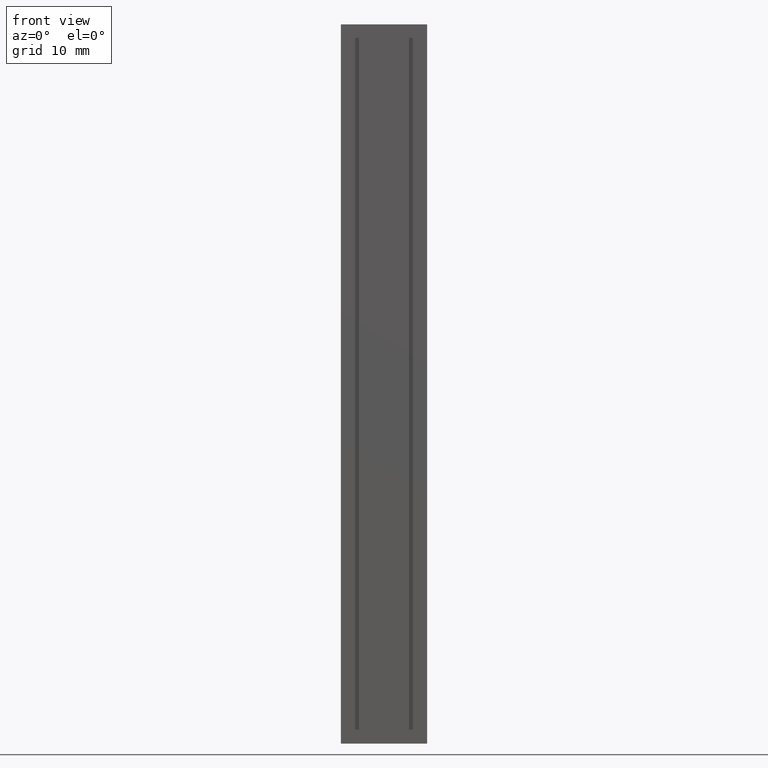
[diagram: clean part render]
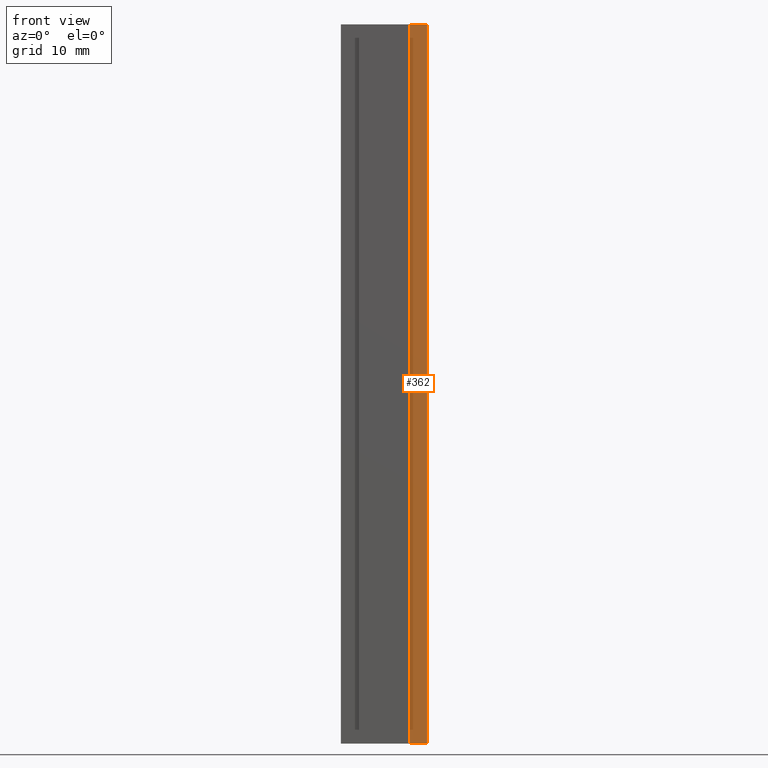
[diagram: same view with one face highlighted and labeled with its STEP entity id]
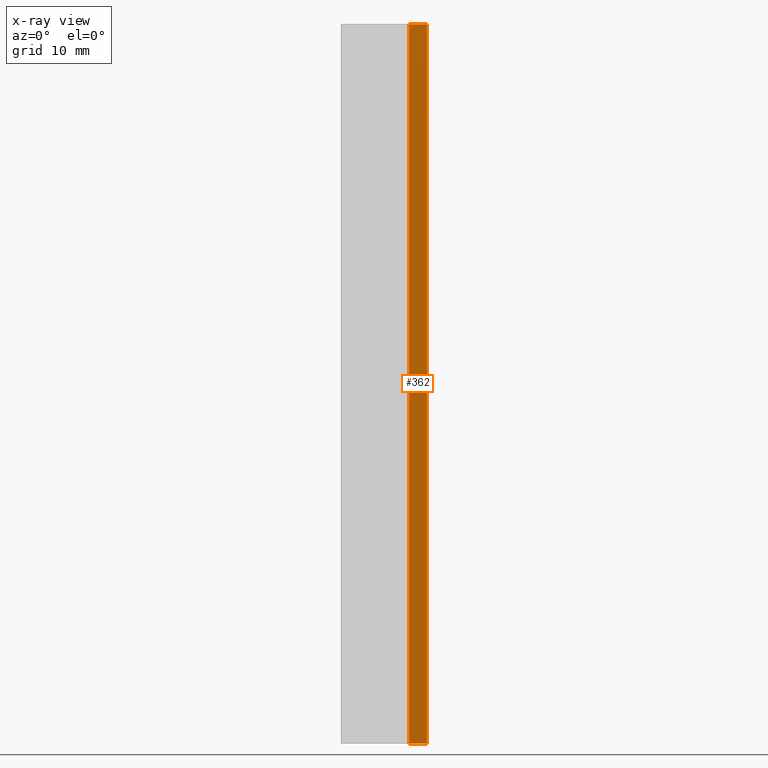
[diagram: x-ray of the same camera — body ghosted, the highlighted face saturated]
A machine part, front view. The second image highlights one B-rep face of the part: STEP entity #362.
The next image is the same camera in x-ray: the body ghosted, the highlighted face saturated — about 0% of this face is hidden behind the body in this view.
In plain terms, the highlighted planar face has unit normal (0, -1, 0).
Its self-contained STEP definition (entity closure, byte-faithful):
#101=CARTESIAN_POINT('',(5.999999999999996,-12.000000000000004,-50.0));
#102=VERTEX_POINT('',#101);
#111=CARTESIAN_POINT('',(3.500000000000001,-12.000000000000002,-50.0));
#112=VERTEX_POINT('',#111);
#113=CARTESIAN_POINT('',(3.500000000000001,-12.000000000000002,-50.0));
#114=DIRECTION('',(1.0,0.0,0.0));
#115=VECTOR('',#114,2.499999999999995);
#116=LINE('',#113,#115);
#117=EDGE_CURVE('',#112,#102,#116,.T.);
#176=CARTESIAN_POINT('',(3.500000000000001,-12.000000000000002,50.0));
#177=VERTEX_POINT('',#176);
#193=CARTESIAN_POINT('',(3.500000000000001,-12.000000000000002,50.0));
#194=DIRECTION('',(0.0,0.0,-1.0));
#195=VECTOR('',#194,100.0);
#196=LINE('',#193,#195);
#197=EDGE_CURVE('',#177,#112,#196,.T.);
#327=CARTESIAN_POINT('',(5.999999999999996,-12.000000000000004,50.0));
#328=VERTEX_POINT('',#327);
#335=CARTESIAN_POINT('',(5.999999999999996,-12.000000000000004,-50.0));
#336=DIRECTION('',(0.0,0.0,1.0));
#337=VECTOR('',#336,100.0);
#338=LINE('',#335,#337);
#339=EDGE_CURVE('',#102,#328,#338,.T.);
#346=CARTESIAN_POINT('',(5.999999999999996,-12.000000000000004,0.0));
#347=DIRECTION('',(0.0,-1.0,0.0));
#348=DIRECTION('',(0.0,0.0,-1.0));
#349=AXIS2_PLACEMENT_3D('',#346,#347,#348);
#350=PLANE('',#349);
#351=CARTESIAN_POINT('',(5.999999999999996,-12.000000000000004,50.0));
#352=DIRECTION('',(-1.0,0.0,0.0));
#353=VECTOR('',#352,2.499999999999995);
#354=LINE('',#351,#353);
#355=EDGE_CURVE('',#328,#177,#354,.T.);
#356=ORIENTED_EDGE('',*,*,#355,.T.);
#357=ORIENTED_EDGE('',*,*,#197,.T.);
#358=ORIENTED_EDGE('',*,*,#117,.T.);
#359=ORIENTED_EDGE('',*,*,#339,.T.);
#360=EDGE_LOOP('',(#356,#357,#358,#359));
#361=FACE_OUTER_BOUND('',#360,.T.);
#362=ADVANCED_FACE('',(#361),#350,.T.);